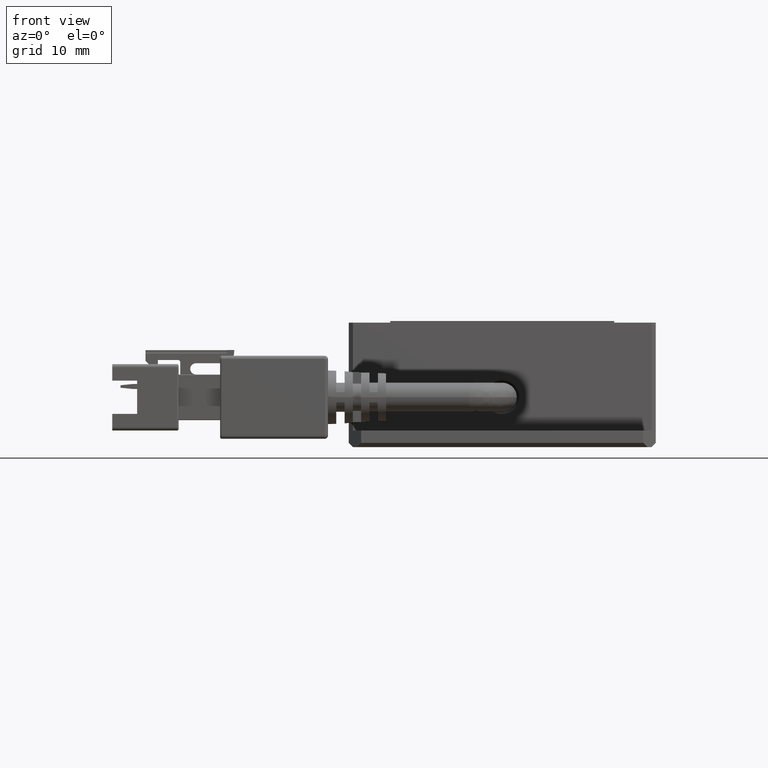
[diagram: clean part render]
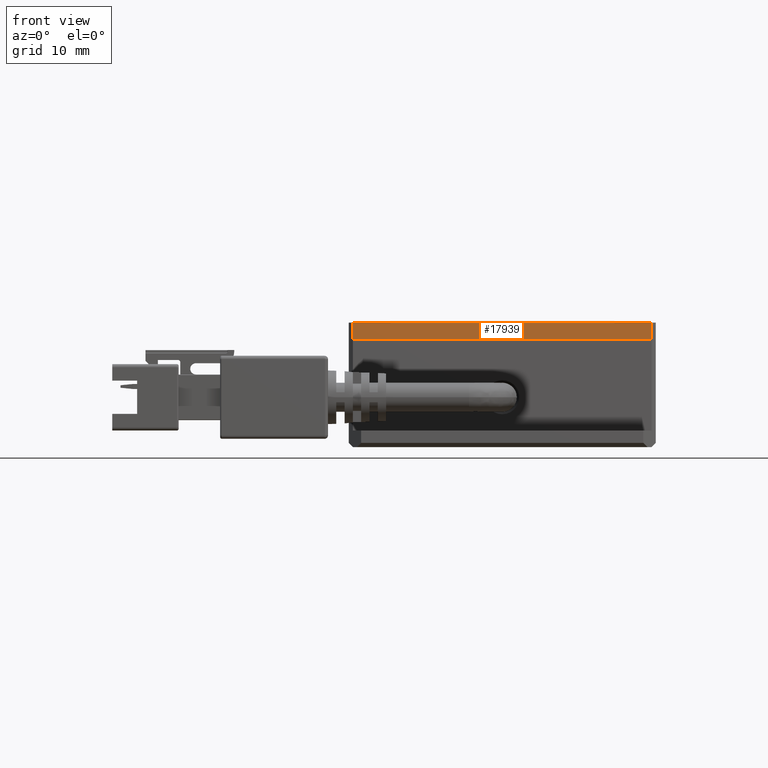
[diagram: same view with one face highlighted and labeled with its STEP entity id]
A machine part, front view. The second image highlights one B-rep face of the part: STEP entity #17939.
In plain terms, the highlighted planar face has unit normal (0, 1, -0).
Its self-contained STEP definition (entity closure, byte-faithful):
#1256 = LINE ( 'NONE', #22243, #6060 ) ;
#2091 = AXIS2_PLACEMENT_3D ( 'NONE', #23326, #11046, #25338 ) ;
#4875 = CARTESIAN_POINT ( 'NONE',  ( 18.47059946544482800, -15.05364642993506900, 10.99999999998363100 ) ) ;
#5047 = VECTOR ( 'NONE', #7395, 1000.000000000000000 ) ;
#5708 = LINE ( 'NONE', #6602, #15998 ) ;
#5875 = EDGE_CURVE ( 'NONE', #19940, #15650, #5708, .T. ) ;
#6060 = VECTOR ( 'NONE', #9992, 1000.000000000000000 ) ;
#6602 = CARTESIAN_POINT ( 'NONE',  ( -18.02940053455517200, -15.05364642993506900, 12.99999999998363100 ) ) ;
#7025 = ORIENTED_EDGE ( 'NONE', *, *, #17159, .F. ) ;
#7395 = DIRECTION ( 'NONE',  ( -0.0000000000000000000, -0.0000000000000000000, -1.000000000000000000 ) ) ;
#7571 = ORIENTED_EDGE ( 'NONE', *, *, #7940, .T. ) ;
#7940 = EDGE_CURVE ( 'NONE', #15480, #17010, #1256, .T. ) ;
#8889 = PLANE ( 'NONE',  #2091 ) ;
#9035 = CARTESIAN_POINT ( 'NONE',  ( -17.52940053455516500, -15.05364642993506900, 10.99999999998363100 ) ) ;
#9992 = DIRECTION ( 'NONE',  ( 1.000000000000000000, 0.0000000000000000000, -0.0000000000000000000 ) ) ;
#10514 = ORIENTED_EDGE ( 'NONE', *, *, #5875, .F. ) ;
#11046 = DIRECTION ( 'NONE',  ( 9.376883653928686100E-017, 1.000000000000000000, -0.0000000000000000000 ) ) ;
#11729 = EDGE_CURVE ( 'NONE', #15480, #19940, #18468, .T. ) ;
#12486 = DIRECTION ( 'NONE',  ( 0.0000000000000000000, 0.0000000000000000000, 1.000000000000000000 ) ) ;
#13633 = VECTOR ( 'NONE', #12486, 1000.000000000000000 ) ;
#15255 = FACE_OUTER_BOUND ( 'NONE', #26102, .T. ) ;
#15480 = VERTEX_POINT ( 'NONE', #9035 ) ;
#15650 = VERTEX_POINT ( 'NONE', #23957 ) ;
#15998 = VECTOR ( 'NONE', #18907, 1000.000000000000000 ) ;
#16944 = ORIENTED_EDGE ( 'NONE', *, *, #11729, .F. ) ;
#17010 = VERTEX_POINT ( 'NONE', #4875 ) ;
#17159 = EDGE_CURVE ( 'NONE', #15650, #17010, #26177, .T. ) ;
#17939 = ADVANCED_FACE ( 'NONE', ( #15255 ), #8889, .F. ) ;
#18468 = LINE ( 'NONE', #20642, #13633 ) ;
#18907 = DIRECTION ( 'NONE',  ( 1.000000000000000000, -9.376883653928686100E-017, -0.0000000000000000000 ) ) ;
#19689 = CARTESIAN_POINT ( 'NONE',  ( 18.47059946544482000, -15.05364642993507300, 12.99999999998363100 ) ) ;
#19940 = VERTEX_POINT ( 'NONE', #24987 ) ;
#20642 = CARTESIAN_POINT ( 'NONE',  ( -17.52940053455516500, -15.05364642993506900, 12.99999999998363100 ) ) ;
#22243 = CARTESIAN_POINT ( 'NONE',  ( -18.02940053455517200, -15.05364642993506900, 10.99999999998363100 ) ) ;
#23326 = CARTESIAN_POINT ( 'NONE',  ( -18.02940053455517200, -15.05364642993506900, 12.99999999998363100 ) ) ;
#23957 = CARTESIAN_POINT ( 'NONE',  ( 18.47059946544482400, -15.05364642993507100, 12.99999999998363100 ) ) ;
#24987 = CARTESIAN_POINT ( 'NONE',  ( -17.52940053455516500, -15.05364642993506900, 12.99999999998363100 ) ) ;
#25338 = DIRECTION ( 'NONE',  ( -1.000000000000000000, 9.376883653928686100E-017, 0.0000000000000000000 ) ) ;
#26102 = EDGE_LOOP ( 'NONE', ( #16944, #7571, #7025, #10514 ) ) ;
#26177 = LINE ( 'NONE', #19689, #5047 ) ;